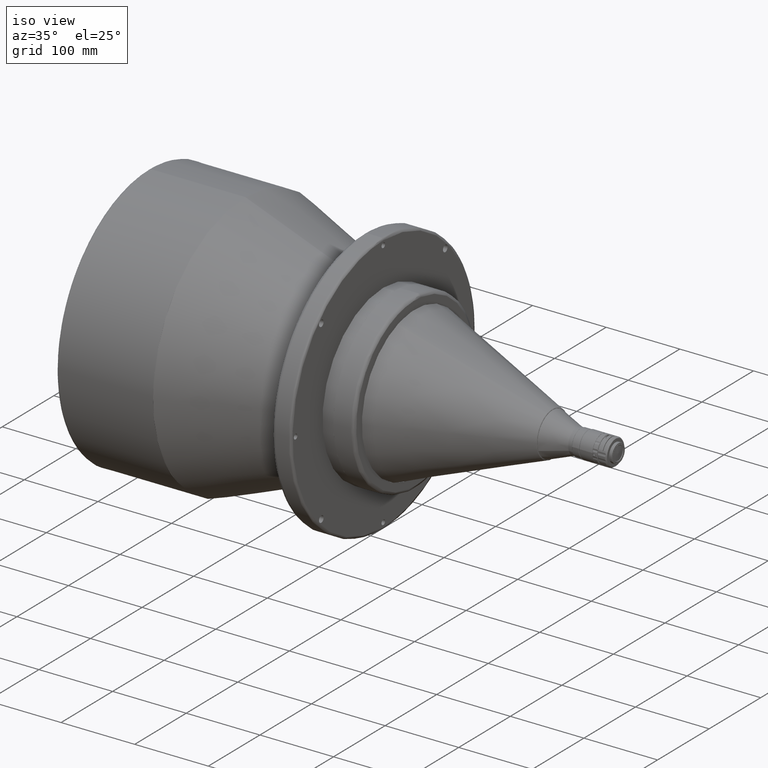
[diagram: clean part render]
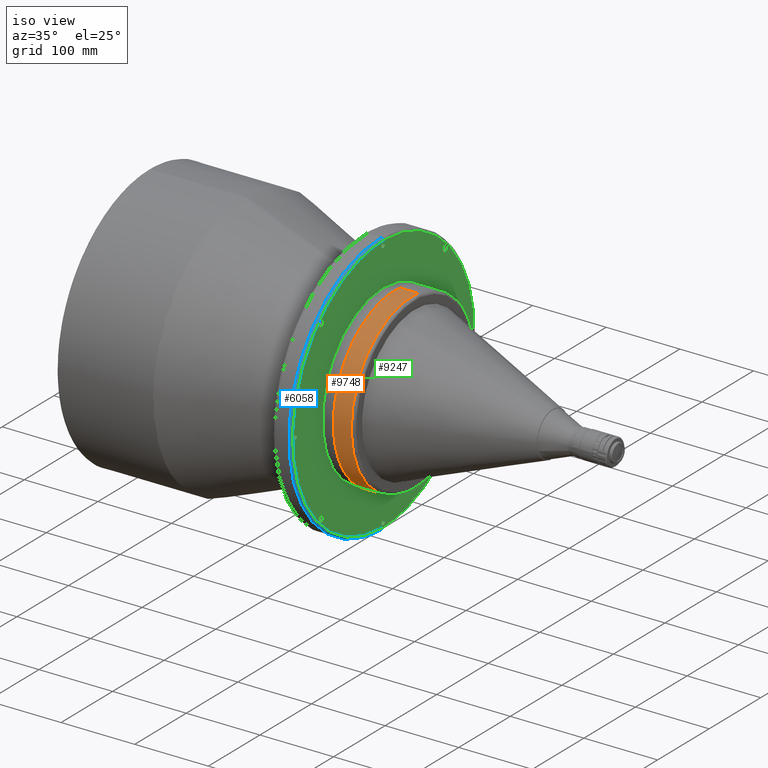
[diagram: same view with three faces highlighted in distinct colors, each labeled with its STEP entity id]
A machine part, iso view with three faces highlighted in distinct colors.
Their STEP definitions:

[orange] entity #9748 — the highlighted cylindrical surface (partial cylindrical patch) has radius 118 mm, axis along (-1, 0, 0).
#80 = DIRECTION ( 'NONE',  ( -1.000000000000000000, 0.0000000000000000000, 0.0000000000000000000 ) ) ;
#227 = DIRECTION ( 'NONE',  ( -1.000000000000000000, 0.0000000000000000000, 0.0000000000000000000 ) ) ;
#253 = AXIS2_PLACEMENT_3D ( 'NONE', #4798, #80, #5589 ) ;
#348 = DIRECTION ( 'NONE',  ( 0.0000000000000000000, 0.09314217533881857800, 0.9956528185934857600 ) ) ;
#487 = CARTESIAN_POINT ( 'NONE',  ( 356.5000000000000600, 10.99077668998059400, 117.4870325940313300 ) ) ;
#1454 = DIRECTION ( 'NONE',  ( -1.000000000000000000, 0.0000000000000000000, 0.0000000000000000000 ) ) ;
#1515 = CARTESIAN_POINT ( 'NONE',  ( 356.5000000005681500, 10.99077668997673900, 117.4870325939901200 ) ) ;
#1592 = VERTEX_POINT ( 'NONE', #7049 ) ;
#1904 = CARTESIAN_POINT ( 'NONE',  ( 356.5000000005681500, -10.99077672009894800, -117.4870325911826500 ) ) ;
#2146 = CYLINDRICAL_SURFACE ( 'NONE', #253, 118.0000000000000100 ) ;
#2253 = CARTESIAN_POINT ( 'NONE',  ( 356.5000000015150500, 0.0000000000000000000, 0.0000000000000000000 ) ) ;
#2299 = EDGE_CURVE ( 'NONE', #2532, #1592, #4215, .T. ) ;
#2532 = VERTEX_POINT ( 'NONE', #1904 ) ;
#2655 = AXIS2_PLACEMENT_3D ( 'NONE', #3487, #4283, #348 ) ;
#3064 = ORIENTED_EDGE ( 'NONE', *, *, #6095, .T. ) ;
#3487 = CARTESIAN_POINT ( 'NONE',  ( 332.5000000000000000, 0.0000000000000000000, 0.0000000000000000000 ) ) ;
#3937 = CIRCLE ( 'NONE', #2655, 118.0000000000000100 ) ;
#3981 = CARTESIAN_POINT ( 'NONE',  ( 356.5000000000000600, -10.99077668998058000, -117.4870325940313300 ) ) ;
#4170 = VECTOR ( 'NONE', #1454, 1000.000000000000000 ) ;
#4215 = LINE ( 'NONE', #3981, #8937 ) ;
#4283 = DIRECTION ( 'NONE',  ( -1.000000000000000000, 0.0000000000000000000, 0.0000000000000000000 ) ) ;
#4512 = DIRECTION ( 'NONE',  ( 1.000000000000000000, 0.0000000000000000000, 0.0000000000000000000 ) ) ;
#4625 = AXIS2_PLACEMENT_3D ( 'NONE', #2253, #4512, #10166 ) ;
#4798 = CARTESIAN_POINT ( 'NONE',  ( 356.5000000000000600, 0.0000000000000000000, 0.0000000000000000000 ) ) ;
#5058 = ORIENTED_EDGE ( 'NONE', *, *, #2299, .F. ) ;
#5582 = EDGE_CURVE ( 'NONE', #1592, #8692, #3937, .T. ) ;
#5589 = DIRECTION ( 'NONE',  ( 0.0000000000000000000, 0.09314217533881857800, 0.9956528185934857600 ) ) ;
#6029 = LINE ( 'NONE', #487, #4170 ) ;
#6093 = VERTEX_POINT ( 'NONE', #1515 ) ;
#6095 = EDGE_CURVE ( 'NONE', #6093, #8692, #6029, .T. ) ;
#6168 = CIRCLE ( 'NONE', #4625, 117.9999999999172500 ) ;
#6343 = EDGE_CURVE ( 'NONE', #6093, #2532, #6168, .T. ) ;
#7049 = CARTESIAN_POINT ( 'NONE',  ( 332.5000000000000000, -10.99077668998058000, -117.4870325940313300 ) ) ;
#7824 = ORIENTED_EDGE ( 'NONE', *, *, #5582, .F. ) ;
#8692 = VERTEX_POINT ( 'NONE', #9611 ) ;
#8701 = ORIENTED_EDGE ( 'NONE', *, *, #6343, .F. ) ;
#8937 = VECTOR ( 'NONE', #227, 1000.000000000000000 ) ;
#9043 = EDGE_LOOP ( 'NONE', ( #5058, #8701, #3064, #7824 ) ) ;
#9599 = FACE_OUTER_BOUND ( 'NONE', #9043, .T. ) ;
#9611 = CARTESIAN_POINT ( 'NONE',  ( 332.5000000000000000, 10.99077668998059400, 117.4870325940313300 ) ) ;
#9748 = ADVANCED_FACE ( 'NONE', ( #9599 ), #2146, .T. ) ;
#10166 = DIRECTION ( 'NONE',  ( 0.0000000000000000000, -0.09314217533881859200, -0.9956528185934858700 ) ) ;

[blue] entity #6058 — the highlighted face is a freeform B-spline surface patch.
#5 = EDGE_CURVE ( 'NONE', #9318, #2509, #3402, .T. ) ;
#605 = EDGE_CURVE ( 'NONE', #2509, #9485, #3277, .T. ) ;
#1121 = CARTESIAN_POINT ( 'NONE',  ( 317.5000000001222100, -352.0000000026986400, -176.0000000014150000 ) ) ;
#1317 = CARTESIAN_POINT ( 'NONE',  ( 317.6896612680000700, 0.0000000000000000000, -177.7401612959999700 ) ) ;
#2062 = CARTESIAN_POINT ( 'NONE',  ( 316.2401612959999400, -358.3793225360000200, -179.1896612679999500 ) ) ;
#2095 = CARTESIAN_POINT ( 'NONE',  ( 317.6896612680000100, -355.4803225909999500, 177.7401612959999100 ) ) ;
#2130 = CARTESIAN_POINT ( 'NONE',  ( 317.5000000000733300, 0.0000000000000000000, 175.9999999659239600 ) ) ;
#2135 = CARTESIAN_POINT ( 'NONE',  ( 316.2401612960000000, 0.0000000000000000000, -179.1896612679999500 ) ) ;
#2167 = CARTESIAN_POINT ( 'NONE',  ( 317.4850124959999100, 0.0000000000000000000, 175.7004997500000100 ) ) ;
#2509 = VERTEX_POINT ( 'NONE', #9951 ) ;
#2545 = AXIS2_PLACEMENT_3D ( 'NONE', #7685, #2940, #7719 ) ;
#2940 = DIRECTION ( 'NONE',  ( 1.000000000000000000, -0.0000000000000000000, -0.0000000000000000000 ) ) ;
#3076 =( BOUNDED_CURVE ( )  B_SPLINE_CURVE ( 3, ( #9139, #7534, #5143, #4389 ),
 .UNSPECIFIED., .F., .F. ) 
 B_SPLINE_CURVE_WITH_KNOTS ( ( 4, 4 ),
 ( 0.06314145699999232400, 0.9368585430000077000 ),
 .UNSPECIFIED. ) 
 CURVE ( )  GEOMETRIC_REPRESENTATION_ITEM ( )  RATIONAL_B_SPLINE_CURVE ( ( 0.9565783021659983700, 0.7697947703959736600, 0.7697947703959735500, 0.9565783021659982600 ) ) 
 REPRESENTATION_ITEM ( '' )  );
#3277 =( BOUNDED_CURVE ( )  B_SPLINE_CURVE ( 3, ( #4237, #1121, #5894, #6646 ),
 .UNSPECIFIED., .F., .F. ) 
 B_SPLINE_CURVE_WITH_KNOTS ( ( 4, 4 ),
 ( 0.0000000000000000000, 1.000000000000000000 ),
 .UNSPECIFIED. ) 
 CURVE ( )  GEOMETRIC_REPRESENTATION_ITEM ( )  RATIONAL_B_SPLINE_CURVE ( ( 0.9565783021616146600, 0.3188594340538712900, 0.3188594340538712900, 0.9565783021616146600 ) ) 
 REPRESENTATION_ITEM ( '' )  );
#3402 =( BOUNDED_CURVE ( )  B_SPLINE_CURVE ( 3, ( #3988, #6371, #5569, #7178 ),
 .UNSPECIFIED., .F., .F. ) 
 B_SPLINE_CURVE_WITH_KNOTS ( ( 4, 4 ),
 ( 0.06314145700000561900, 0.9368585430000009300 ),
 .UNSPECIFIED. ) 
 CURVE ( )  GEOMETRIC_REPRESENTATION_ITEM ( )  RATIONAL_B_SPLINE_CURVE ( ( 0.9565783021659897100, 0.7697947703959751000, 0.7697947703959765500, 0.9565783021659939300 ) ) 
 REPRESENTATION_ITEM ( '' )  );
#3676 = EDGE_CURVE ( 'NONE', #7833, #9318, #9776, .T. ) ;
#3695 = CARTESIAN_POINT ( 'NONE',  ( 317.6896612680000700, 0.0000000000000000000, 177.7401612959999700 ) ) ;
#3988 = CARTESIAN_POINT ( 'NONE',  ( 314.5000000003454400, -5.507027055636640100E-008, -179.0000000000305800 ) ) ;
#4237 = CARTESIAN_POINT ( 'NONE',  ( 317.5000000000733300, 0.0000000000000000000, -175.9999999659239600 ) ) ;
#4389 = CARTESIAN_POINT ( 'NONE',  ( 314.5000000003454400, -1.607305948874321200E-008, 179.0000000000305800 ) ) ;
#4496 = CARTESIAN_POINT ( 'NONE',  ( 317.4850124959999100, -351.4009994999999500, -175.7004997500000300 ) ) ;
#5050 = ORIENTED_EDGE ( 'NONE', *, *, #5, .T. ) ;
#5143 = CARTESIAN_POINT ( 'NONE',  ( 316.2573593132307800, 0.0000000000000000000, 178.9999999990893700 ) ) ;
#5177 = CARTESIAN_POINT ( 'NONE',  ( 314.2004997500000100, -357.9700249919999400, 178.9850124960000000 ) ) ;
#5212 = CARTESIAN_POINT ( 'NONE',  ( 314.2004997500000100, -357.9700249919999400, -178.9850124960000000 ) ) ;
#5249 = CARTESIAN_POINT ( 'NONE',  ( 314.2004997499999500, 0.0000000000000000000, -178.9850124960000000 ) ) ;
#5346 =( BOUNDED_SURFACE ( )  B_SPLINE_SURFACE ( 3, 3, ( 
 ( #5249, #5212, #5177, #6816 ),
 ( #2135, #2062, #9284, #9220 ),
 ( #1317, #6854, #2095, #3695 ),
 ( #6776, #4496, #10044, #2167 ) ),
 .UNSPECIFIED., .F., .F., .T. ) 
 B_SPLINE_SURFACE_WITH_KNOTS ( ( 4, 4 ),
 ( 4, 4 ),
 ( 0.0000000000000000000, 1.000000000000000000 ),
 ( 0.0000000000000000000, 1.000000000000000000 ),
 .UNSPECIFIED. ) 
 GEOMETRIC_REPRESENTATION_ITEM ( )  RATIONAL_B_SPLINE_SURFACE ( (
 ( 1.000000000000000000, 0.3333333333333330400, 0.3333333333333330400, 1.000000000000000000),
 ( 0.7553208711179730800, 0.2517736237059909900, 0.2517736237059909900, 0.7553208711179730800),
 ( 0.7553208711179730800, 0.2517736237059909900, 0.2517736237059909900, 0.7553208711179730800),
 ( 1.000000000000000000, 0.3333333333333330400, 0.3333333333333330400, 1.000000000000000000) ) ) 
 REPRESENTATION_ITEM ( '' )  SURFACE ( )  );
#5569 = CARTESIAN_POINT ( 'NONE',  ( 317.4999999990893700, 0.0000000000000000000, -177.7573593132306400 ) ) ;
#5894 = CARTESIAN_POINT ( 'NONE',  ( 317.5000000001222100, -352.0000000026986400, 176.0000000014150000 ) ) ;
#6038 = ORIENTED_EDGE ( 'NONE', *, *, #9332, .T. ) ;
#6058 = ADVANCED_FACE ( 'NONE', ( #6767 ), #5346, .T. ) ;
#6371 = CARTESIAN_POINT ( 'NONE',  ( 316.2573593132308400, 0.0000000000000000000, -178.9999999990892800 ) ) ;
#6463 = ORIENTED_EDGE ( 'NONE', *, *, #605, .T. ) ;
#6646 = CARTESIAN_POINT ( 'NONE',  ( 317.5000000000733300, 0.0000000000000000000, 175.9999999659239600 ) ) ;
#6767 = FACE_OUTER_BOUND ( 'NONE', #9316, .T. ) ;
#6776 = CARTESIAN_POINT ( 'NONE',  ( 317.4850124959999100, 0.0000000000000000000, -175.7004997500000100 ) ) ;
#6816 = CARTESIAN_POINT ( 'NONE',  ( 314.2004997499999500, 0.0000000000000000000, 178.9850124960000000 ) ) ;
#6852 = CARTESIAN_POINT ( 'NONE',  ( 314.5000000003454400, -1.607305948874321200E-008, 179.0000000000305800 ) ) ;
#6854 = CARTESIAN_POINT ( 'NONE',  ( 317.6896612680000100, -355.4803225909999500, -177.7401612959999100 ) ) ;
#7178 = CARTESIAN_POINT ( 'NONE',  ( 317.5000000000733300, 0.0000000000000000000, -175.9999999659239600 ) ) ;
#7307 = CARTESIAN_POINT ( 'NONE',  ( 314.5000000003454400, -5.507027055636640800E-008, -179.0000000000305800 ) ) ;
#7534 = CARTESIAN_POINT ( 'NONE',  ( 317.4999999990894300, 0.0000000000000000000, 177.7573593132306900 ) ) ;
#7558 = ORIENTED_EDGE ( 'NONE', *, *, #3676, .T. ) ;
#7685 = CARTESIAN_POINT ( 'NONE',  ( 314.5000000000000000, 0.0000000000000000000, 0.0000000000000000000 ) ) ;
#7719 = DIRECTION ( 'NONE',  ( 0.0000000000000000000, 0.0000000000000000000, 1.000000000000000000 ) ) ;
#7833 = VERTEX_POINT ( 'NONE', #6852 ) ;
#9139 = CARTESIAN_POINT ( 'NONE',  ( 317.5000000000733300, 0.0000000000000000000, 175.9999999659239600 ) ) ;
#9220 = CARTESIAN_POINT ( 'NONE',  ( 316.2401612960000000, 0.0000000000000000000, 179.1896612679999500 ) ) ;
#9284 = CARTESIAN_POINT ( 'NONE',  ( 316.2401612959999400, -358.3793225360000200, 179.1896612679999500 ) ) ;
#9316 = EDGE_LOOP ( 'NONE', ( #6038, #7558, #5050, #6463 ) ) ;
#9318 = VERTEX_POINT ( 'NONE', #7307 ) ;
#9332 = EDGE_CURVE ( 'NONE', #9485, #7833, #3076, .T. ) ;
#9485 = VERTEX_POINT ( 'NONE', #2130 ) ;
#9776 = CIRCLE ( 'NONE', #2545, 178.9999999999999700 ) ;
#9951 = CARTESIAN_POINT ( 'NONE',  ( 317.5000000000733300, 0.0000000000000000000, -175.9999999659239600 ) ) ;
#10044 = CARTESIAN_POINT ( 'NONE',  ( 317.4850124959999100, -351.4009994999999500, 175.7004997500000300 ) ) ;

[green] entity #9247 — the highlighted planar face has unit normal (-1, 0, 0).
#54 = CARTESIAN_POINT ( 'NONE',  ( 317.5000000000000000, 170.0000000000000000, 0.0000000000000000000 ) ) ;
#95 = CARTESIAN_POINT ( 'NONE',  ( 317.5000000000000000, 0.0000000000000000000, 166.5999999999999900 ) ) ;
#113 = CIRCLE ( 'NONE', #4127, 3.400000000000014100 ) ;
#121 = DIRECTION ( 'NONE',  ( 1.000000000000000000, -0.0000000000000000000, 0.0000000000000000000 ) ) ;
#146 = AXIS2_PLACEMENT_3D ( 'NONE', #9152, #7512, #2833 ) ;
#215 = DIRECTION ( 'NONE',  ( 1.000000000000000000, -0.0000000000000000000, 0.0000000000000000000 ) ) ;
#401 = DIRECTION ( 'NONE',  ( 1.000000000000000000, 0.0000000000000000000, 0.0000000000000000000 ) ) ;
#494 = DIRECTION ( 'NONE',  ( 0.0000000000000000000, 0.0000000000000000000, -1.000000000000000000 ) ) ;
#513 = ORIENTED_EDGE ( 'NONE', *, *, #768, .F. ) ;
#523 = ORIENTED_EDGE ( 'NONE', *, *, #7416, .F. ) ;
#605 = EDGE_CURVE ( 'NONE', #2509, #9485, #3277, .T. ) ;
#687 = FACE_BOUND ( 'NONE', #7312, .T. ) ;
#755 = CARTESIAN_POINT ( 'NONE',  ( 317.5000000000000000, -170.0000000000000000, -3.399999999999999900 ) ) ;
#768 = EDGE_CURVE ( 'NONE', #7560, #8828, #5809, .T. ) ;
#786 = DIRECTION ( 'NONE',  ( 1.000000000000000000, 0.0000000000000000000, 0.0000000000000000000 ) ) ;
#803 = DIRECTION ( 'NONE',  ( 0.0000000000000000000, 0.0000000000000000000, -1.000000000000000000 ) ) ;
#811 = EDGE_LOOP ( 'NONE', ( #887, #4074 ) ) ;
#831 = DIRECTION ( 'NONE',  ( 1.000000000000000000, 0.0000000000000000000, 0.0000000000000000000 ) ) ;
#837 = EDGE_CURVE ( 'NONE', #6936, #4640, #6325, .T. ) ;
#845 = EDGE_CURVE ( 'NONE', #9485, #2509, #5990, .T. ) ;
#887 = ORIENTED_EDGE ( 'NONE', *, *, #1390, .F. ) ;
#924 = AXIS2_PLACEMENT_3D ( 'NONE', #3274, #786, #9643 ) ;
#935 = DIRECTION ( 'NONE',  ( 1.000000000000000000, -0.0000000000000000000, 0.0000000000000000000 ) ) ;
#975 = CIRCLE ( 'NONE', #1084, 4.499999999999990200 ) ;
#1047 = VERTEX_POINT ( 'NONE', #3576 ) ;
#1084 = AXIS2_PLACEMENT_3D ( 'NONE', #3514, #9780, #8244 ) ;
#1121 = CARTESIAN_POINT ( 'NONE',  ( 317.5000000001222100, -352.0000000026986400, -176.0000000014150000 ) ) ;
#1203 = CARTESIAN_POINT ( 'NONE',  ( 317.5000000000000000, -120.2081528019999900, 115.7081528019999900 ) ) ;
#1300 = FACE_BOUND ( 'NONE', #1414, .T. ) ;
#1358 = VERTEX_POINT ( 'NONE', #3547 ) ;
#1390 = EDGE_CURVE ( 'NONE', #1358, #8841, #7734, .T. ) ;
#1414 = EDGE_LOOP ( 'NONE', ( #4398, #1558 ) ) ;
#1558 = ORIENTED_EDGE ( 'NONE', *, *, #9337, .F. ) ;
#1724 = PLANE ( 'NONE',  #4488 ) ;
#1743 = AXIS2_PLACEMENT_3D ( 'NONE', #6126, #2973, #3878 ) ;
#1745 = CIRCLE ( 'NONE', #1743, 4.499999999999990200 ) ;
#1767 = CARTESIAN_POINT ( 'NONE',  ( 317.5000000000000000, 120.2081528019999900, 115.7081528019999900 ) ) ;
#1891 = ORIENTED_EDGE ( 'NONE', *, *, #605, .F. ) ;
#2006 = VERTEX_POINT ( 'NONE', #2458 ) ;
#2024 = EDGE_CURVE ( 'NONE', #9108, #5725, #3610, .T. ) ;
#2029 = FACE_OUTER_BOUND ( 'NONE', #2386, .T. ) ;
#2044 = ORIENTED_EDGE ( 'NONE', *, *, #8741, .F. ) ;
#2077 = EDGE_CURVE ( 'NONE', #4465, #5340, #7829, .T. ) ;
#2108 = CIRCLE ( 'NONE', #6511, 3.399999999999999900 ) ;
#2125 = EDGE_LOOP ( 'NONE', ( #5285, #2583 ) ) ;
#2126 = DIRECTION ( 'NONE',  ( 1.000000000000000000, -0.0000000000000000000, -0.0000000000000000000 ) ) ;
#2130 = CARTESIAN_POINT ( 'NONE',  ( 317.5000000000733300, 0.0000000000000000000, 175.9999999659239600 ) ) ;
#2189 = CARTESIAN_POINT ( 'NONE',  ( 317.5000000000000000, 0.0000000000000000000, 0.0000000000000000000 ) ) ;
#2283 = EDGE_CURVE ( 'NONE', #8848, #2006, #7076, .T. ) ;
#2309 = CARTESIAN_POINT ( 'NONE',  ( 317.5000000000000000, -170.0000000000000000, 3.399999999999999900 ) ) ;
#2386 = EDGE_LOOP ( 'NONE', ( #5043, #1891 ) ) ;
#2444 = CARTESIAN_POINT ( 'NONE',  ( 317.5000000000000000, -120.2081528019999900, 120.2081528019999900 ) ) ;
#2458 = CARTESIAN_POINT ( 'NONE',  ( 317.5000000000000000, 170.0000000000000000, 3.399999999999999900 ) ) ;
#2463 = CARTESIAN_POINT ( 'NONE',  ( 317.5000000000733300, 0.0000000000000000000, -175.9999999659239600 ) ) ;
#2509 = VERTEX_POINT ( 'NONE', #9951 ) ;
#2524 = DIRECTION ( 'NONE',  ( -1.000000000000000000, 0.0000000000000000000, 0.0000000000000000000 ) ) ;
#2538 = CARTESIAN_POINT ( 'NONE',  ( 317.5000000000000000, -120.2081528019999900, 120.2081528019999900 ) ) ;
#2558 = EDGE_CURVE ( 'NONE', #2952, #4503, #2108, .T. ) ;
#2583 = ORIENTED_EDGE ( 'NONE', *, *, #2558, .F. ) ;
#2690 = VERTEX_POINT ( 'NONE', #1203 ) ;
#2756 = EDGE_CURVE ( 'NONE', #4640, #6936, #1745, .T. ) ;
#2760 = CARTESIAN_POINT ( 'NONE',  ( 317.5000000000000000, 170.0000000000000000, -3.399999999999999900 ) ) ;
#2797 = CARTESIAN_POINT ( 'NONE',  ( 317.5000000000000000, 0.0000000000000000000, 170.0000000000000000 ) ) ;
#2833 = DIRECTION ( 'NONE',  ( 0.0000000000000000000, 0.0000000000000000000, -1.000000000000000000 ) ) ;
#2850 = EDGE_CURVE ( 'NONE', #5340, #4465, #5574, .T. ) ;
#2943 = AXIS2_PLACEMENT_3D ( 'NONE', #2444, #935, #3289 ) ;
#2952 = VERTEX_POINT ( 'NONE', #2309 ) ;
#2973 = DIRECTION ( 'NONE',  ( 1.000000000000000000, 0.0000000000000000000, 0.0000000000000000000 ) ) ;
#2986 = ORIENTED_EDGE ( 'NONE', *, *, #3866, .F. ) ;
#3040 = CARTESIAN_POINT ( 'NONE',  ( 317.5000000000000000, 4.163799117100984300E-016, -166.6000000000000200 ) ) ;
#3041 = FACE_BOUND ( 'NONE', #4828, .T. ) ;
#3069 = CARTESIAN_POINT ( 'NONE',  ( 317.5000000000000000, -120.2081528019999900, -120.2081528019999900 ) ) ;
#3159 = FACE_BOUND ( 'NONE', #9423, .T. ) ;
#3172 = CIRCLE ( 'NONE', #8015, 4.500000000000003600 ) ;
#3174 = CARTESIAN_POINT ( 'NONE',  ( 317.5000000000733300, 0.0000000000000000000, 175.9999999659239600 ) ) ;
#3219 = ORIENTED_EDGE ( 'NONE', *, *, #4341, .F. ) ;
#3234 = AXIS2_PLACEMENT_3D ( 'NONE', #6220, #10175, #4630 ) ;
#3258 = DIRECTION ( 'NONE',  ( 0.0000000000000000000, 0.0000000000000000000, -1.000000000000000000 ) ) ;
#3274 = CARTESIAN_POINT ( 'NONE',  ( 317.5000000000000000, 120.2081528019999900, -120.2081528019999900 ) ) ;
#3277 =( BOUNDED_CURVE ( )  B_SPLINE_CURVE ( 3, ( #4237, #1121, #5894, #6646 ),
 .UNSPECIFIED., .F., .F. ) 
 B_SPLINE_CURVE_WITH_KNOTS ( ( 4, 4 ),
 ( 0.0000000000000000000, 1.000000000000000000 ),
 .UNSPECIFIED. ) 
 CURVE ( )  GEOMETRIC_REPRESENTATION_ITEM ( )  RATIONAL_B_SPLINE_CURVE ( ( 0.9565783021616146600, 0.3188594340538712900, 0.3188594340538712900, 0.9565783021616146600 ) ) 
 REPRESENTATION_ITEM ( '' )  );
#3289 = DIRECTION ( 'NONE',  ( 0.0000000000000000000, 0.0000000000000000000, -1.000000000000000000 ) ) ;
#3408 = FACE_BOUND ( 'NONE', #2125, .T. ) ;
#3418 = DIRECTION ( 'NONE',  ( 0.0000000000000000000, 0.0000000000000000000, -1.000000000000000000 ) ) ;
#3514 = CARTESIAN_POINT ( 'NONE',  ( 317.5000000000000000, -120.2081528019999900, -120.2081528019999900 ) ) ;
#3521 = DIRECTION ( 'NONE',  ( 0.0000000000000000000, 0.0000000000000000000, -1.000000000000000000 ) ) ;
#3547 = CARTESIAN_POINT ( 'NONE',  ( 317.5000000000000000, 0.0000000000000000000, 118.0000000000000100 ) ) ;
#3576 = CARTESIAN_POINT ( 'NONE',  ( 317.5000000000000000, 120.2081528019999900, 124.7081528020000000 ) ) ;
#3604 = AXIS2_PLACEMENT_3D ( 'NONE', #3945, #121, #803 ) ;
#3610 = CIRCLE ( 'NONE', #10088, 3.400000000000014100 ) ;
#3826 = DIRECTION ( 'NONE',  ( 0.0000000000000000000, 0.0000000000000000000, -1.000000000000000000 ) ) ;
#3866 = EDGE_CURVE ( 'NONE', #6659, #2690, #5048, .T. ) ;
#3878 = DIRECTION ( 'NONE',  ( 0.0000000000000000000, 0.0000000000000000000, -1.000000000000000000 ) ) ;
#3945 = CARTESIAN_POINT ( 'NONE',  ( 317.5000000000000000, 120.2081528019999900, 120.2081528019999900 ) ) ;
#4037 = AXIS2_PLACEMENT_3D ( 'NONE', #9123, #401, #7483 ) ;
#4050 = EDGE_CURVE ( 'NONE', #7573, #1047, #6925, .T. ) ;
#4051 = CARTESIAN_POINT ( 'NONE',  ( 317.5000000000000000, 0.0000000000000000000, -170.0000000000000000 ) ) ;
#4074 = ORIENTED_EDGE ( 'NONE', *, *, #10122, .F. ) ;
#4127 = AXIS2_PLACEMENT_3D ( 'NONE', #5067, #9100, #3521 ) ;
#4150 = DIRECTION ( 'NONE',  ( 1.000000000000000000, 0.0000000000000000000, 0.0000000000000000000 ) ) ;
#4237 = CARTESIAN_POINT ( 'NONE',  ( 317.5000000000733300, 0.0000000000000000000, -175.9999999659239600 ) ) ;
#4304 = CARTESIAN_POINT ( 'NONE',  ( 317.5000000000000000, -170.0000000000000000, 0.0000000000000000000 ) ) ;
#4341 = EDGE_CURVE ( 'NONE', #8828, #7560, #975, .T. ) ;
#4398 = ORIENTED_EDGE ( 'NONE', *, *, #4050, .F. ) ;
#4409 = ORIENTED_EDGE ( 'NONE', *, *, #2756, .F. ) ;
#4465 = VERTEX_POINT ( 'NONE', #3040 ) ;
#4488 = AXIS2_PLACEMENT_3D ( 'NONE', #4916, #2524, #9757 ) ;
#4503 = VERTEX_POINT ( 'NONE', #755 ) ;
#4630 = DIRECTION ( 'NONE',  ( 0.0000000000000000000, 0.0000000000000000000, 1.000000000000000000 ) ) ;
#4632 = ORIENTED_EDGE ( 'NONE', *, *, #5559, .F. ) ;
#4640 = VERTEX_POINT ( 'NONE', #6642 ) ;
#4828 = EDGE_LOOP ( 'NONE', ( #3219, #513 ) ) ;
#4916 = CARTESIAN_POINT ( 'NONE',  ( 317.5000000000000000, -178.1119999999999900, -178.1119999999999900 ) ) ;
#5043 = ORIENTED_EDGE ( 'NONE', *, *, #845, .F. ) ;
#5048 = CIRCLE ( 'NONE', #2943, 4.500000000000003600 ) ;
#5065 = DIRECTION ( 'NONE',  ( 1.000000000000000000, -0.0000000000000000000, 0.0000000000000000000 ) ) ;
#5067 = CARTESIAN_POINT ( 'NONE',  ( 317.5000000000000000, 0.0000000000000000000, 170.0000000000000000 ) ) ;
#5117 = ORIENTED_EDGE ( 'NONE', *, *, #2283, .F. ) ;
#5124 = FACE_BOUND ( 'NONE', #811, .T. ) ;
#5257 = DIRECTION ( 'NONE',  ( 1.000000000000000000, 0.0000000000000000000, 0.0000000000000000000 ) ) ;
#5285 = ORIENTED_EDGE ( 'NONE', *, *, #8132, .F. ) ;
#5340 = VERTEX_POINT ( 'NONE', #9368 ) ;
#5500 = ORIENTED_EDGE ( 'NONE', *, *, #2077, .F. ) ;
#5518 = DIRECTION ( 'NONE',  ( 1.000000000000000000, 0.0000000000000000000, 0.0000000000000000000 ) ) ;
#5559 = EDGE_CURVE ( 'NONE', #5725, #9108, #113, .T. ) ;
#5574 = CIRCLE ( 'NONE', #5844, 3.399999999999986100 ) ;
#5635 = FACE_BOUND ( 'NONE', #6216, .T. ) ;
#5643 = CIRCLE ( 'NONE', #4037, 3.399999999999999900 ) ;
#5673 = DIRECTION ( 'NONE',  ( 0.0000000000000000000, 0.0000000000000000000, -1.000000000000000000 ) ) ;
#5725 = VERTEX_POINT ( 'NONE', #95 ) ;
#5775 = CARTESIAN_POINT ( 'NONE',  ( 317.5000000000000000, -120.2081528019999900, -115.7081528020000000 ) ) ;
#5809 = CIRCLE ( 'NONE', #7156, 4.499999999999990200 ) ;
#5844 = AXIS2_PLACEMENT_3D ( 'NONE', #4051, #831, #3258 ) ;
#5870 = DIRECTION ( 'NONE',  ( 0.0000000000000000000, 0.0000000000000000000, -1.000000000000000000 ) ) ;
#5881 = DIRECTION ( 'NONE',  ( 0.0000000000000000000, 0.0000000000000000000, -1.000000000000000000 ) ) ;
#5894 = CARTESIAN_POINT ( 'NONE',  ( 317.5000000001222100, -352.0000000026986400, 176.0000000014150000 ) ) ;
#5918 = DIRECTION ( 'NONE',  ( 1.000000000000000000, 0.0000000000000000000, 0.0000000000000000000 ) ) ;
#5990 =( BOUNDED_CURVE ( )  B_SPLINE_CURVE ( 3, ( #3174, #8846, #7932, #2463 ),
 .UNSPECIFIED., .F., .F. ) 
 B_SPLINE_CURVE_WITH_KNOTS ( ( 4, 4 ),
 ( 0.0000000000000000000, 1.000000000000000000 ),
 .UNSPECIFIED. ) 
 CURVE ( )  GEOMETRIC_REPRESENTATION_ITEM ( )  RATIONAL_B_SPLINE_CURVE ( ( 0.9565783021616163200, 0.3188594340538719000, 0.3188594340538719000, 0.9565783021616163200 ) ) 
 REPRESENTATION_ITEM ( '' )  );
#6076 = DIRECTION ( 'NONE',  ( 0.0000000000000000000, 0.0000000000000000000, 1.000000000000000000 ) ) ;
#6126 = CARTESIAN_POINT ( 'NONE',  ( 317.5000000000000000, 120.2081528019999900, -120.2081528019999900 ) ) ;
#6134 = FACE_BOUND ( 'NONE', #9436, .T. ) ;
#6216 = EDGE_LOOP ( 'NONE', ( #2044, #2986 ) ) ;
#6220 = CARTESIAN_POINT ( 'NONE',  ( 317.5000000000000000, 0.0000000000000000000, 0.0000000000000000000 ) ) ;
#6250 = FACE_BOUND ( 'NONE', #6493, .T. ) ;
#6325 = CIRCLE ( 'NONE', #924, 4.499999999999990200 ) ;
#6383 = AXIS2_PLACEMENT_3D ( 'NONE', #54, #4150, #5673 ) ;
#6493 = EDGE_LOOP ( 'NONE', ( #7852, #5500 ) ) ;
#6511 = AXIS2_PLACEMENT_3D ( 'NONE', #8267, #5918, #6706 ) ;
#6544 = ORIENTED_EDGE ( 'NONE', *, *, #2024, .F. ) ;
#6548 = DIRECTION ( 'NONE',  ( 1.000000000000000000, 0.0000000000000000000, 0.0000000000000000000 ) ) ;
#6642 = CARTESIAN_POINT ( 'NONE',  ( 317.5000000000000000, 120.2081528019999900, -124.7081528019999900 ) ) ;
#6646 = CARTESIAN_POINT ( 'NONE',  ( 317.5000000000733300, 0.0000000000000000000, 175.9999999659239600 ) ) ;
#6656 = CARTESIAN_POINT ( 'NONE',  ( 317.5000000000000000, 120.2081528019999900, 120.2081528019999900 ) ) ;
#6659 = VERTEX_POINT ( 'NONE', #9741 ) ;
#6706 = DIRECTION ( 'NONE',  ( 0.0000000000000000000, 0.0000000000000000000, -1.000000000000000000 ) ) ;
#6737 = CIRCLE ( 'NONE', #7008, 4.500000000000003600 ) ;
#6925 = CIRCLE ( 'NONE', #3604, 4.500000000000003600 ) ;
#6936 = VERTEX_POINT ( 'NONE', #7858 ) ;
#7008 = AXIS2_PLACEMENT_3D ( 'NONE', #6656, #5065, #5870 ) ;
#7030 = AXIS2_PLACEMENT_3D ( 'NONE', #2189, #2126, #6076 ) ;
#7035 = ORIENTED_EDGE ( 'NONE', *, *, #837, .F. ) ;
#7076 = CIRCLE ( 'NONE', #6383, 3.399999999999999900 ) ;
#7156 = AXIS2_PLACEMENT_3D ( 'NONE', #3069, #5518, #3826 ) ;
#7312 = EDGE_LOOP ( 'NONE', ( #4632, #6544 ) ) ;
#7416 = EDGE_CURVE ( 'NONE', #2006, #8848, #5643, .T. ) ;
#7483 = DIRECTION ( 'NONE',  ( 0.0000000000000000000, 0.0000000000000000000, -1.000000000000000000 ) ) ;
#7512 = DIRECTION ( 'NONE',  ( 1.000000000000000000, 0.0000000000000000000, 0.0000000000000000000 ) ) ;
#7560 = VERTEX_POINT ( 'NONE', #5775 ) ;
#7573 = VERTEX_POINT ( 'NONE', #1767 ) ;
#7734 = CIRCLE ( 'NONE', #7030, 118.0000000000000100 ) ;
#7759 = CIRCLE ( 'NONE', #8071, 3.399999999999999900 ) ;
#7829 = CIRCLE ( 'NONE', #146, 3.399999999999986100 ) ;
#7852 = ORIENTED_EDGE ( 'NONE', *, *, #2850, .F. ) ;
#7858 = CARTESIAN_POINT ( 'NONE',  ( 317.5000000000000000, 120.2081528019999900, -115.7081528020000000 ) ) ;
#7932 = CARTESIAN_POINT ( 'NONE',  ( 317.5000000001221600, 352.0000000026986400, -176.0000000014149700 ) ) ;
#8015 = AXIS2_PLACEMENT_3D ( 'NONE', #2538, #215, #5881 ) ;
#8071 = AXIS2_PLACEMENT_3D ( 'NONE', #4304, #6548, #3418 ) ;
#8132 = EDGE_CURVE ( 'NONE', #4503, #2952, #7759, .T. ) ;
#8244 = DIRECTION ( 'NONE',  ( 0.0000000000000000000, 0.0000000000000000000, -1.000000000000000000 ) ) ;
#8260 = CARTESIAN_POINT ( 'NONE',  ( 317.5000000000000000, -120.2081528019999900, -124.7081528019999900 ) ) ;
#8267 = CARTESIAN_POINT ( 'NONE',  ( 317.5000000000000000, -170.0000000000000000, 0.0000000000000000000 ) ) ;
#8583 = CARTESIAN_POINT ( 'NONE',  ( 317.5000000000000000, 4.163799117101018300E-016, 173.4000000000000300 ) ) ;
#8741 = EDGE_CURVE ( 'NONE', #2690, #6659, #3172, .T. ) ;
#8828 = VERTEX_POINT ( 'NONE', #8260 ) ;
#8841 = VERTEX_POINT ( 'NONE', #9870 ) ;
#8846 = CARTESIAN_POINT ( 'NONE',  ( 317.5000000001221600, 352.0000000026986400, 176.0000000014149700 ) ) ;
#8848 = VERTEX_POINT ( 'NONE', #2760 ) ;
#9083 = CIRCLE ( 'NONE', #3234, 118.0000000000000100 ) ;
#9100 = DIRECTION ( 'NONE',  ( 1.000000000000000000, 0.0000000000000000000, 0.0000000000000000000 ) ) ;
#9108 = VERTEX_POINT ( 'NONE', #8583 ) ;
#9123 = CARTESIAN_POINT ( 'NONE',  ( 317.5000000000000000, 170.0000000000000000, 0.0000000000000000000 ) ) ;
#9152 = CARTESIAN_POINT ( 'NONE',  ( 317.5000000000000000, 0.0000000000000000000, -170.0000000000000000 ) ) ;
#9247 = ADVANCED_FACE ( 'NONE', ( #3159, #5124, #6250, #3408, #687, #6134, #3041, #5635, #1300, #2029 ), #1724, .F. ) ;
#9337 = EDGE_CURVE ( 'NONE', #1047, #7573, #6737, .T. ) ;
#9368 = CARTESIAN_POINT ( 'NONE',  ( 317.5000000000000000, 0.0000000000000000000, -173.4000000000000100 ) ) ;
#9423 = EDGE_LOOP ( 'NONE', ( #5117, #523 ) ) ;
#9436 = EDGE_LOOP ( 'NONE', ( #4409, #7035 ) ) ;
#9485 = VERTEX_POINT ( 'NONE', #2130 ) ;
#9643 = DIRECTION ( 'NONE',  ( 0.0000000000000000000, 0.0000000000000000000, -1.000000000000000000 ) ) ;
#9741 = CARTESIAN_POINT ( 'NONE',  ( 317.5000000000000000, -120.2081528019999900, 124.7081528020000000 ) ) ;
#9757 = DIRECTION ( 'NONE',  ( 0.0000000000000000000, 0.0000000000000000000, 1.000000000000000000 ) ) ;
#9780 = DIRECTION ( 'NONE',  ( 1.000000000000000000, 0.0000000000000000000, 0.0000000000000000000 ) ) ;
#9870 = CARTESIAN_POINT ( 'NONE',  ( 317.5000000000000000, 1.445083222993877000E-014, -118.0000000000000100 ) ) ;
#9951 = CARTESIAN_POINT ( 'NONE',  ( 317.5000000000733300, 0.0000000000000000000, -175.9999999659239600 ) ) ;
#10088 = AXIS2_PLACEMENT_3D ( 'NONE', #2797, #5257, #494 ) ;
#10122 = EDGE_CURVE ( 'NONE', #8841, #1358, #9083, .T. ) ;
#10175 = DIRECTION ( 'NONE',  ( 1.000000000000000000, -0.0000000000000000000, -0.0000000000000000000 ) ) ;